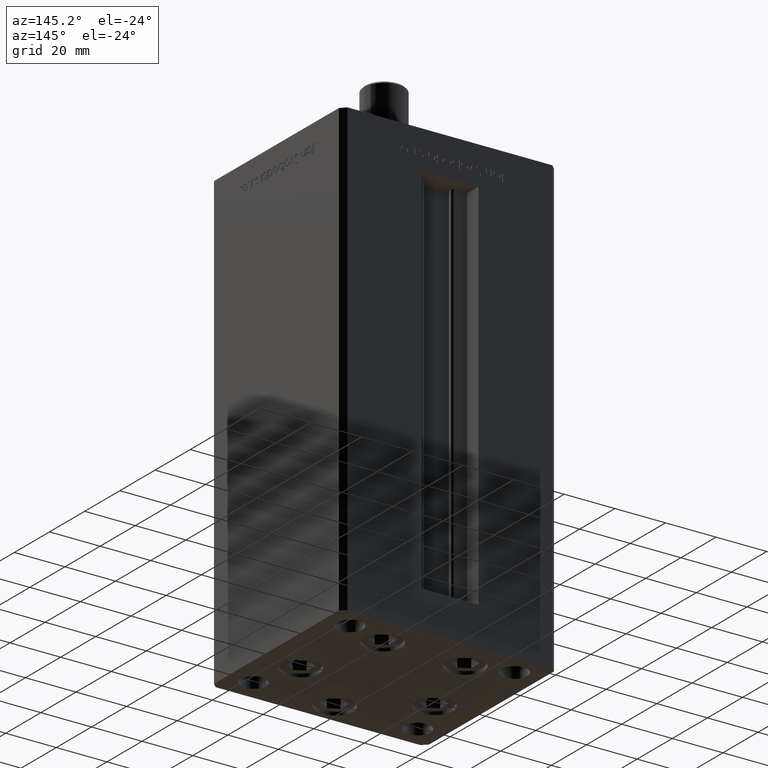
[diagram: clean part render]
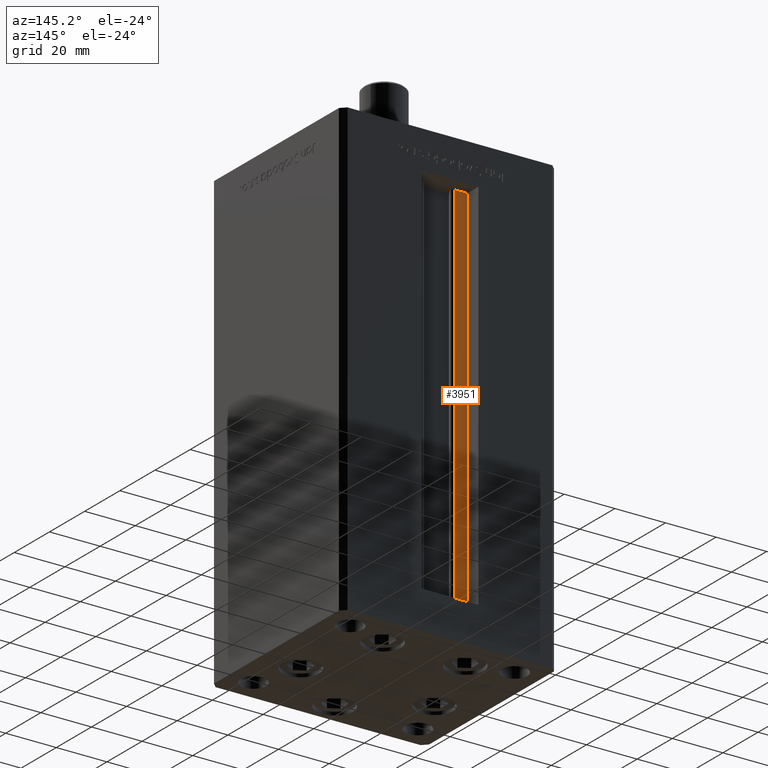
[diagram: same view with one face highlighted and labeled with its STEP entity id]
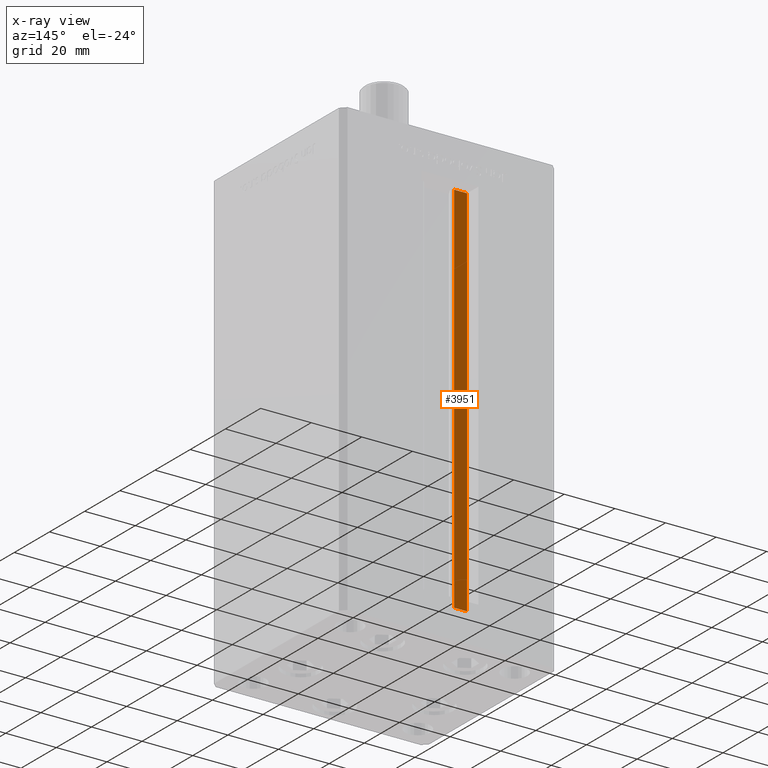
[diagram: x-ray of the same camera — body ghosted, the highlighted face saturated]
A machine part, auxiliary view. The second image highlights one B-rep face of the part: STEP entity #3951.
The next image is the same camera in x-ray: the body ghosted, the highlighted face saturated — about 0% of this face is hidden behind the body in this view.
In plain terms, the highlighted planar face has unit normal (0, -1, 0).
Its self-contained STEP definition (entity closure, byte-faithful):
#1700 = CARTESIAN_POINT ( 'NONE',  ( -6.183333333333999704, 30.99999999999999289, 0.000000000000000000 ) ) ;
#2092 = DIRECTION ( 'NONE',  ( -1.000000000000000000, 0.000000000000000000, 0.000000000000000000 ) ) ;
#2352 = CARTESIAN_POINT ( 'NONE',  ( 0.000000000000000000, 30.99999999999999289, 148.5000000000000000 ) ) ;
#3951 = ADVANCED_FACE ( 'NONE', ( #24509 ), #36190, .F. ) ;
#3985 = CARTESIAN_POINT ( 'NONE',  ( -11.25000000000000000, 30.99999999999999289, 0.000000000000000000 ) ) ;
#6035 = CARTESIAN_POINT ( 'NONE',  ( -6.183333333333999704, 30.99999999999999289, 0.000000000000000000 ) ) ;
#7420 = EDGE_CURVE ( 'NONE', #48260, #20424, #35786, .T. ) ;
#8318 = EDGE_CURVE ( 'NONE', #47021, #19929, #34147, .T. ) ;
#12074 = DIRECTION ( 'NONE',  ( 0.000000000000000000, -1.000000000000000000, -0.000000000000000000 ) ) ;
#12944 = VECTOR ( 'NONE', #2092, 1000.000000000000000 ) ;
#13162 = VECTOR ( 'NONE', #28829, 1000.000000000000000 ) ;
#15478 = VECTOR ( 'NONE', #15650, 1000.000000000000000 ) ;
#15650 = DIRECTION ( 'NONE',  ( 1.000000000000000000, -0.000000000000000000, -0.000000000000000000 ) ) ;
#19240 = ORIENTED_EDGE ( 'NONE', *, *, #37284, .T. ) ;
#19450 = CARTESIAN_POINT ( 'NONE',  ( -11.25000000000000000, 30.99999999999999289, 148.5000000000000000 ) ) ;
#19929 = VERTEX_POINT ( 'NONE', #19450 ) ;
#20349 = ORIENTED_EDGE ( 'NONE', *, *, #8318, .F. ) ;
#20424 = VERTEX_POINT ( 'NONE', #6035 ) ;
#21393 = LINE ( 'NONE', #32806, #13162 ) ;
#23120 = EDGE_LOOP ( 'NONE', ( #33906, #26413, #19240, #20349 ) ) ;
#24509 = FACE_OUTER_BOUND ( 'NONE', #23120, .T. ) ;
#26413 = ORIENTED_EDGE ( 'NONE', *, *, #7420, .F. ) ;
#28227 = DIRECTION ( 'NONE',  ( 0.000000000000000000, 0.000000000000000000, -1.000000000000000000 ) ) ;
#28829 = DIRECTION ( 'NONE',  ( -0.000000000000000000, -0.000000000000000000, 1.000000000000000000 ) ) ;
#30300 = DIRECTION ( 'NONE',  ( -0.000000000000000000, -0.000000000000000000, 1.000000000000000000 ) ) ;
#32207 = CARTESIAN_POINT ( 'NONE',  ( -6.183333333333999704, 30.99999999999999289, 0.000000000000000000 ) ) ;
#32806 = CARTESIAN_POINT ( 'NONE',  ( -11.25000000000000000, 30.99999999999999289, 0.000000000000000000 ) ) ;
#33906 = ORIENTED_EDGE ( 'NONE', *, *, #44516, .F. ) ;
#34147 = LINE ( 'NONE', #2352, #12944 ) ;
#34290 = CARTESIAN_POINT ( 'NONE',  ( -6.183333333333999704, 30.99999999999999289, 148.5000000000000000 ) ) ;
#35786 = LINE ( 'NONE', #43999, #15478 ) ;
#36190 = PLANE ( 'NONE',  #50895 ) ;
#37284 = EDGE_CURVE ( 'NONE', #48260, #19929, #21393, .T. ) ;
#40436 = VECTOR ( 'NONE', #30300, 1000.000000000000000 ) ;
#43999 = CARTESIAN_POINT ( 'NONE',  ( -6.183333333333999704, 30.99999999999999289, 0.000000000000000000 ) ) ;
#44516 = EDGE_CURVE ( 'NONE', #20424, #47021, #45963, .T. ) ;
#45963 = LINE ( 'NONE', #1700, #40436 ) ;
#47021 = VERTEX_POINT ( 'NONE', #34290 ) ;
#48260 = VERTEX_POINT ( 'NONE', #3985 ) ;
#50895 = AXIS2_PLACEMENT_3D ( 'NONE', #32207, #12074, #28227 ) ;